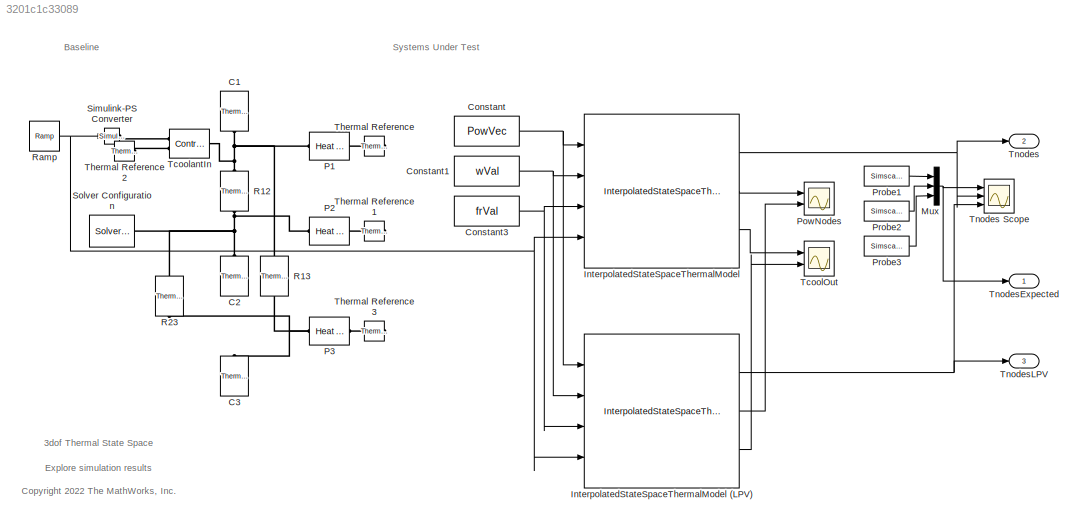
MODEL slx_3201c1c33089
KIND model
CONFIG AbsTol = 1e-3
CONFIG EnableMultiTasking = off
CONFIG FixedStep = auto
CONFIG MaxStep = auto
CONFIG MinStep = auto
CONFIG RelTol = 1e-3
CONFIG SampleTimeConstraint = Unconstrained
CONFIG SolverName = VariableStepAuto
CONFIG StartTime = 0.0
CONFIG StopTime = 10.0
BLOCK [Reference] C1  REF=fl_lib/Thermal/Thermal Elements/Thermal Mass
  NameLocation = left
  Ports = [0, 0, 0, 0, 0, 1]
  SourceBlock = fl_lib/Thermal/Thermal Elements/Thermal Mass
  SourceProductBaseCode = SS
  SourceType = Thermal Mass
BLOCK [Reference] C2  REF=fl_lib/Thermal/Thermal Elements/Thermal Mass
  NameLocation = left
  Ports = [0, 0, 0, 0, 0, 1]
  SourceBlock = fl_lib/Thermal/Thermal Elements/Thermal Mass
  SourceProductBaseCode = SS
  SourceType = Thermal Mass
BLOCK [Reference] C3  REF=fl_lib/Thermal/Thermal Elements/Thermal Mass
  NameLocation = left
  Ports = [0, 0, 0, 0, 0, 1]
  SourceBlock = fl_lib/Thermal/Thermal Elements/Thermal Mass
  SourceProductBaseCode = SS
  SourceType = Thermal Mass
BLOCK [Constant] Constant
  Value = PowVec
BLOCK [Constant] Constant1
  Value = wVal
BLOCK [Constant] Constant3
  Value = frVal
BLOCK [Reference] InterpolatedStateSpaceThermalModel  REF=mcadROM_lib/InterpolatedStateSpaceThermalModel
  Ports = [4, 3]
  SourceBlock = mcadROM_lib/InterpolatedStateSpaceThermalModel
BLOCK [Reference] InterpolatedStateSpaceThermalModel (LPV)  REF=mcadROM_lib/InterpolatedStateSpaceThermalModel (LPV)
  Ports = [4, 3]
  SourceBlock = mcadROM_lib/InterpolatedStateSpaceThermalModel (LPV)
BLOCK [Mux] Mux
  DisplayOption = bar
  Inputs = 3
  Ports = [3, 1]
BLOCK [Reference] P1  REF=fl_lib/Thermal/Thermal Sources/Heat Flow Rate
Source
  NameLocation = top
  Ports = [0, 0, 0, 0, 0, 1, 1]
  SourceBlock = fl_lib/Thermal/Thermal Sources/Heat Flow Rate\nSource
  SourceProductBaseCode = SS
  SourceType = Heat Flow Rate\nSource
BLOCK [Reference] P2  REF=fl_lib/Thermal/Thermal Sources/Heat Flow Rate
Source
  NameLocation = top
  Ports = [0, 0, 0, 0, 0, 1, 1]
  SourceBlock = fl_lib/Thermal/Thermal Sources/Heat Flow Rate\nSource
  SourceProductBaseCode = SS
  SourceType = Heat Flow Rate\nSource
BLOCK [Reference] P3  REF=fl_lib/Thermal/Thermal Sources/Heat Flow Rate
Source
  NameLocation = top
  Ports = [0, 0, 0, 0, 0, 1, 1]
  SourceBlock = fl_lib/Thermal/Thermal Sources/Heat Flow Rate\nSource
  SourceProductBaseCode = SS
  SourceType = Heat Flow Rate\nSource
BLOCK [Scope] PowNodes
  Floating = off
  NumInputPorts = 2
  Ports = [2]
  ScopeSpecificationString = Simulink.scopes.TimeScopeBlockCfg('CurrentConfiguration', extmgr.ConfigurationSet(extmgr.Configuration('Core','General UI',true),extmgr.Configuration('Core','Source UI',true),extmgr.Configuration('Sources','WiredSimulink',true,'DataLoggingVariableName','ScopeData1'),extmgr.Configuration('Visuals','Time Domain',true,'SerializedDisplays',{struct('MinYLimReal','-33.75','MaxYLimReal','3.75','YLabelRea...<+2273ch>
BLOCK [SimscapeProbe] Probe1
  BoundBlock = 9
  Ports = [0, 1]
  Variables = {T}
BLOCK [SimscapeProbe] Probe2
  BoundBlock = 10
  Ports = [0, 1]
  Variables = {T}
BLOCK [SimscapeProbe] Probe3
  BoundBlock = 37
  Ports = [0, 1]
  Variables = {T}
BLOCK [Reference] R12  REF=ee_lib/Passive/Thermal/Thermal Resistor
  NameLocation = left
  Ports = [0, 0, 0, 0, 0, 1, 1]
  SourceBlock = ee_lib/Passive/Thermal/Thermal Resistor
  SourceProductBaseCode = PS
  SourceType = Thermal Resistor
BLOCK [Reference] R13  REF=ee_lib/Passive/Thermal/Thermal Resistor
  NameLocation = right
  Ports = [0, 0, 0, 0, 0, 1, 1]
  SourceBlock = ee_lib/Passive/Thermal/Thermal Resistor
  SourceProductBaseCode = PS
  SourceType = Thermal Resistor
BLOCK [Reference] R23  REF=ee_lib/Passive/Thermal/Thermal Resistor
  NameLocation = left
  Ports = [0, 0, 0, 0, 0, 1, 1]
  SourceBlock = ee_lib/Passive/Thermal/Thermal Resistor
  SourceProductBaseCode = PS
  SourceType = Thermal Resistor
BLOCK [Reference] Ramp  REF=simulink/Sources/Ramp
  Ports = [0, 1]
  SourceBlock = simulink/Sources/Ramp
  SourceProductBaseCode = SL
  SourceType = Ramp
BLOCK [Reference] Simulink-PS Converter  REF=nesl_utility/Simulink-PS
Converter
  Ports = [1, 0, 0, 0, 0, 0, 1]
  SourceBlock = nesl_utility/Simulink-PS\nConverter
  SourceProductBaseCode = PW,SS
  SourceType = Simulink-PS\nConverter
BLOCK [Reference] Solver Configuration  REF=nesl_utility/Solver
Configuration
  Ports = [0, 0, 0, 0, 0, 0, 1]
  SourceBlock = nesl_utility/Solver\nConfiguration
  SourceProductBaseCode = PW,SS
  SourceType = Solver\nConfiguration
BLOCK [Scope] TcoolOut
  Floating = off
  NumInputPorts = 2
  Ports = [2]
  ScopeSpecificationString = Simulink.scopes.TimeScopeBlockCfg('CurrentConfiguration', extmgr.ConfigurationSet(extmgr.Configuration('Core','General UI',true),extmgr.Configuration('Core','Source UI',true),extmgr.Configuration('Sources','WiredSimulink',true,'DataLoggingVariableName','ScopeData4'),extmgr.Configuration('Visuals','Time Domain',true,'SerializedDisplays',{struct('MinYLimReal','295.0699','MaxYLimReal','345.06784','YL...<+1529ch>
BLOCK [Reference] TcoolantIn  REF=fl_lib/Thermal/Thermal Sources/Controlled
Temperature Source
  Ports = [0, 0, 0, 0, 0, 1, 2]
  SourceBlock = fl_lib/Thermal/Thermal Sources/Controlled\nTemperature Source
  SourceProductBaseCode = SS
  SourceType = Controlled\nTemperature Source
BLOCK [Reference] Thermal Reference  REF=fl_lib/Thermal/Thermal Elements/Thermal Reference
  NameLocation = top
  Ports = [0, 0, 0, 0, 0, 1]
  SourceBlock = fl_lib/Thermal/Thermal Elements/Thermal Reference
  SourceProductBaseCode = SS
  SourceType = Thermal Reference
BLOCK [Reference] Thermal Reference1  REF=fl_lib/Thermal/Thermal Elements/Thermal Reference
  NameLocation = top
  Ports = [0, 0, 0, 0, 0, 1]
  SourceBlock = fl_lib/Thermal/Thermal Elements/Thermal Reference
  SourceProductBaseCode = SS
  SourceType = Thermal Reference
BLOCK [Reference] Thermal Reference2  REF=fl_lib/Thermal/Thermal Elements/Thermal Reference
  Ports = [0, 0, 0, 0, 0, 1]
  SourceBlock = fl_lib/Thermal/Thermal Elements/Thermal Reference
  SourceProductBaseCode = SS
  SourceType = Thermal Reference
BLOCK [Reference] Thermal Reference3  REF=fl_lib/Thermal/Thermal Elements/Thermal Reference
  NameLocation = top
  Ports = [0, 0, 0, 0, 0, 1]
  SourceBlock = fl_lib/Thermal/Thermal Elements/Thermal Reference
  SourceProductBaseCode = SS
  SourceType = Thermal Reference
BLOCK [Outport] Tnodes
  Port = 2
BLOCK [Scope] Tnodes Scope
  Floating = off
  NumInputPorts = 3
  Ports = [3]
  ScopeSpecificationString = Simulink.scopes.TimeScopeBlockCfg('CurrentConfiguration', extmgr.ConfigurationSet(extmgr.Configuration('Core','General UI',true),extmgr.Configuration('Core','Source UI',true),extmgr.Configuration('Sources','WiredSimulink',true),extmgr.Configuration('Visuals','Time Domain',true,'SerializedDisplays',{struct('MinYLimReal','282.50013','MaxYLimReal','357.49887','YLabelReal','','MinYLimMag','282.50013',...<+2659ch>
BLOCK [Outport] TnodesExpected
BLOCK [Outport] TnodesLPV
  Port = 3
ANNOTATION (root): 3dof Thermal State Space
ANNOTATION (root): Explore simulation results
ANNOTATION (root): Baseline
ANNOTATION (root): <copyright redacted>
ANNOTATION (root): Systems Under Test
NET Constant1:1 -> InterpolatedStateSpaceThermalModel (LPV):2, InterpolatedStateSpaceThermalModel:2
NET Constant3:1 -> InterpolatedStateSpaceThermalModel (LPV):3, InterpolatedStateSpaceThermalModel:3
NET Constant:1 -> InterpolatedStateSpaceThermalModel (LPV):1, InterpolatedStateSpaceThermalModel:1
NET InterpolatedStateSpaceThermalModel (LPV):1 -> Tnodes Scope:3, TnodesLPV:1
LINE InterpolatedStateSpaceThermalModel (LPV):2 -> PowNodes:2
LINE InterpolatedStateSpaceThermalModel (LPV):3 -> TcoolOut:2
NET InterpolatedStateSpaceThermalModel:1 -> Tnodes Scope:2, Tnodes:1
LINE InterpolatedStateSpaceThermalModel:2 -> PowNodes:1
LINE InterpolatedStateSpaceThermalModel:3 -> TcoolOut:1
NET Mux:1 -> Tnodes Scope:1, TnodesExpected:1
LINE Probe1:1 -> Mux:1
LINE Probe2:1 -> Mux:2
LINE Probe3:1 -> Mux:3
NET Ramp:1 -> InterpolatedStateSpaceThermalModel (LPV):4, InterpolatedStateSpaceThermalModel:4, Simulink-PS Converter:1
PNET net1: C1:LConn1 -- P1:LConn1 -- R12:LConn1 -- R13:LConn1 -- TcoolantIn:LConn1
PNET net2: C2:LConn1 -- P2:LConn1 -- R12:RConn1 -- R23:LConn1 -- Solver Configuration:RConn1
PNET net3: C3:LConn1 -- P3:LConn1 -- R13:RConn1 -- R23:RConn1
PLINE P1:RConn1 -- Thermal Reference:LConn1
PLINE P2:RConn1 -- Thermal Reference1:LConn1
PLINE P3:RConn1 -- Thermal Reference3:LConn1
PLINE Simulink-PS Converter:RConn1 -- TcoolantIn:RConn1
PLINE TcoolantIn:RConn2 -- Thermal Reference2:LConn1
note: NET lines group one-source signal fan-out (src -> all destinations, sorted); 1:1 wires keep LINE; PNET lines group multi-terminal physical nets as a canonical sorted terminal list (undirected conserving connections); 2-terminal nets keep the pairwise PLINE form
